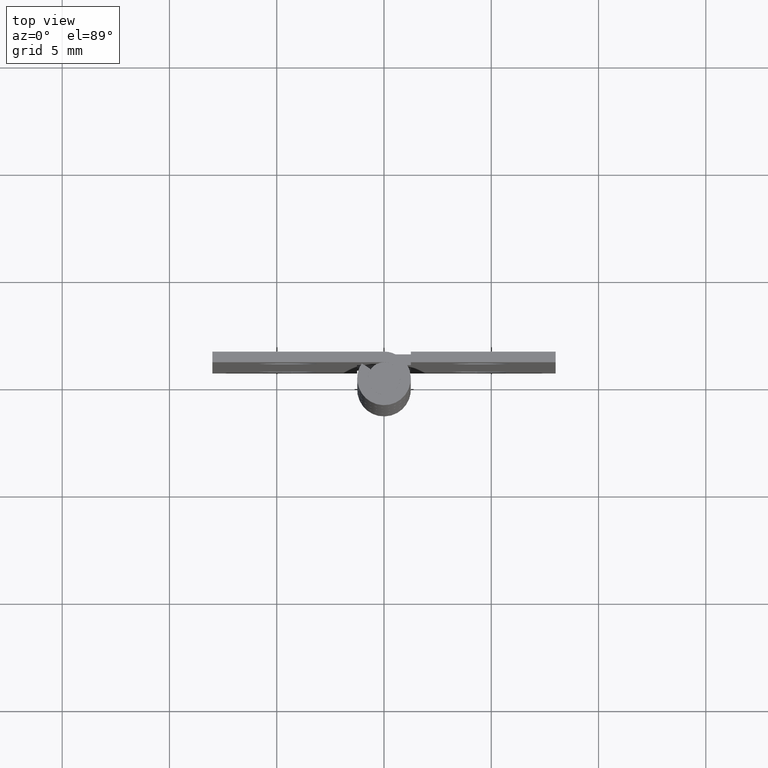
[diagram: clean part render]
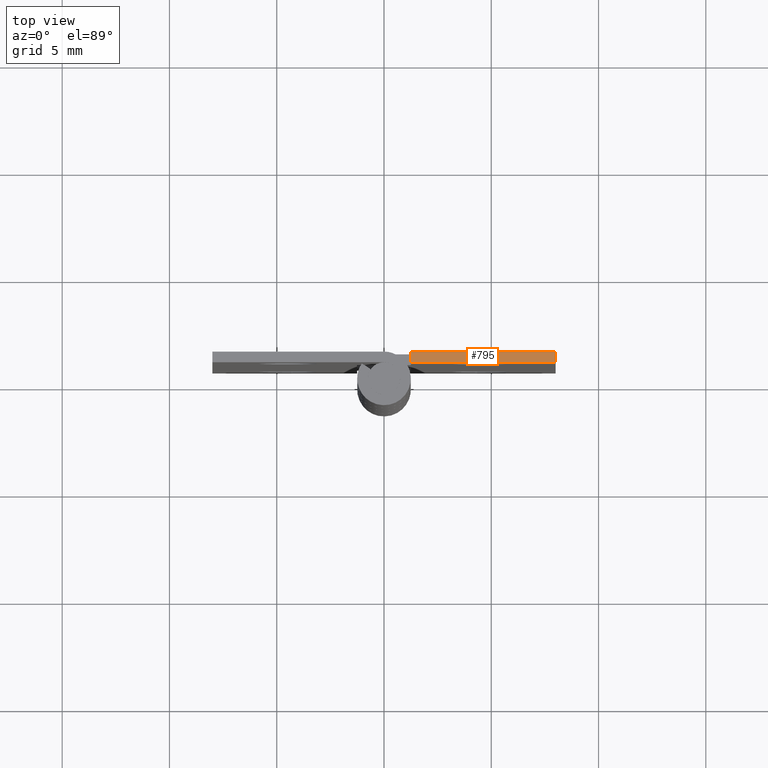
[diagram: same view with one face highlighted and labeled with its STEP entity id]
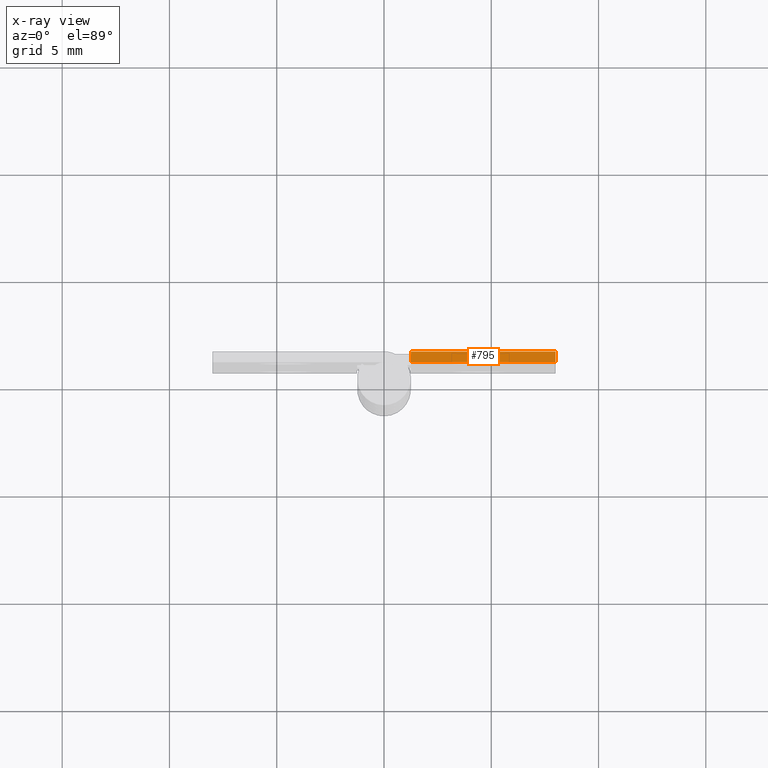
[diagram: x-ray of the same camera — body ghosted, the highlighted face saturated]
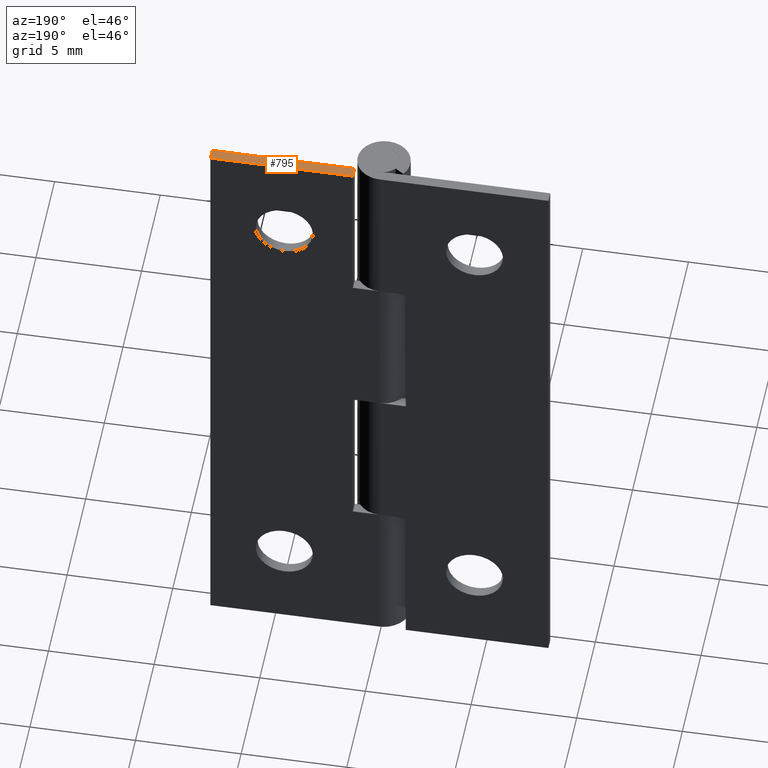
[diagram: same view with one face highlighted and labeled with its STEP entity id]
A machine part, top view. The second image highlights one B-rep face of the part: STEP entity #795.
The next image is the same camera in x-ray: the body ghosted, the highlighted face saturated — about 0% of this face is hidden behind the body in this view.
A second angle (auxiliary view) of the same face is appended — the face is thin or edge-on in the first view.
In plain terms, the highlighted face is a freeform B-spline surface patch.
Its self-contained STEP definition (entity closure, byte-faithful):
#491=CARTESIAN_POINT('',(1.250000000000000,0.750000000000000,30.0));
#492=VERTEX_POINT('',#491);
#498=CARTESIAN_POINT('',(1.250000000000000,1.249999999999972,30.0));
#499=VERTEX_POINT('',#498);
#500=CARTESIAN_POINT('',(1.250000000000000,0.750000000000000,30.0));
#501=CARTESIAN_POINT('',(1.250000000000000,1.249999999999972,30.0));
#502=QUASI_UNIFORM_CURVE('',1,(#500,#501),.UNSPECIFIED.,.F.,.U.);
#503=EDGE_CURVE('',#492,#499,#502,.T.);
#768=CARTESIAN_POINT('',(0.912837513082810,0.725025000969097,30.0));
#769=CARTESIAN_POINT('',(8.337162667966299,0.725025000969097,30.0));
#770=CARTESIAN_POINT('',(0.912837513082810,1.274975012441948,30.0));
#771=CARTESIAN_POINT('',(8.337162667966299,1.274975012441948,30.0));
#772=B_SPLINE_SURFACE_WITH_KNOTS('',1,1,((#768,#770),(#769,#771)),.UNSPECIFIED.,.F.,.F.,.U.,(2,2),(2,2),(0.0,7.424325154883489),(0.041708334948495,0.958291687403247),.UNSPECIFIED.);
#773=CARTESIAN_POINT('',(8.0,1.250000000000000,30.0));
#774=VERTEX_POINT('',#773);
#775=CARTESIAN_POINT('',(1.250000000000000,1.249999999999972,30.0));
#776=CARTESIAN_POINT('',(8.0,1.250000000000000,30.0));
#777=QUASI_UNIFORM_CURVE('',1,(#775,#776),.UNSPECIFIED.,.F.,.U.);
#778=EDGE_CURVE('',#499,#774,#777,.T.);
#779=ORIENTED_EDGE('',*,*,#778,.F.);
#780=ORIENTED_EDGE('',*,*,#503,.F.);
#781=CARTESIAN_POINT('',(8.0,0.750000000000000,30.0));
#782=VERTEX_POINT('',#781);
#783=CARTESIAN_POINT('',(8.0,0.750000000000000,30.0));
#784=CARTESIAN_POINT('',(1.250000000000000,0.750000000000000,30.0));
#785=QUASI_UNIFORM_CURVE('',1,(#783,#784),.UNSPECIFIED.,.F.,.U.);
#786=EDGE_CURVE('',#782,#492,#785,.T.);
#787=ORIENTED_EDGE('',*,*,#786,.F.);
#788=CARTESIAN_POINT('',(8.0,1.250000000000000,30.0));
#789=CARTESIAN_POINT('',(8.0,0.750000000000000,30.0));
#790=QUASI_UNIFORM_CURVE('',1,(#788,#789),.UNSPECIFIED.,.F.,.U.);
#791=EDGE_CURVE('',#774,#782,#790,.T.);
#792=ORIENTED_EDGE('',*,*,#791,.F.);
#793=EDGE_LOOP('',(#779,#780,#787,#792));
#794=FACE_OUTER_BOUND('',#793,.T.);
#795=ADVANCED_FACE('',(#794),#772,.T.);